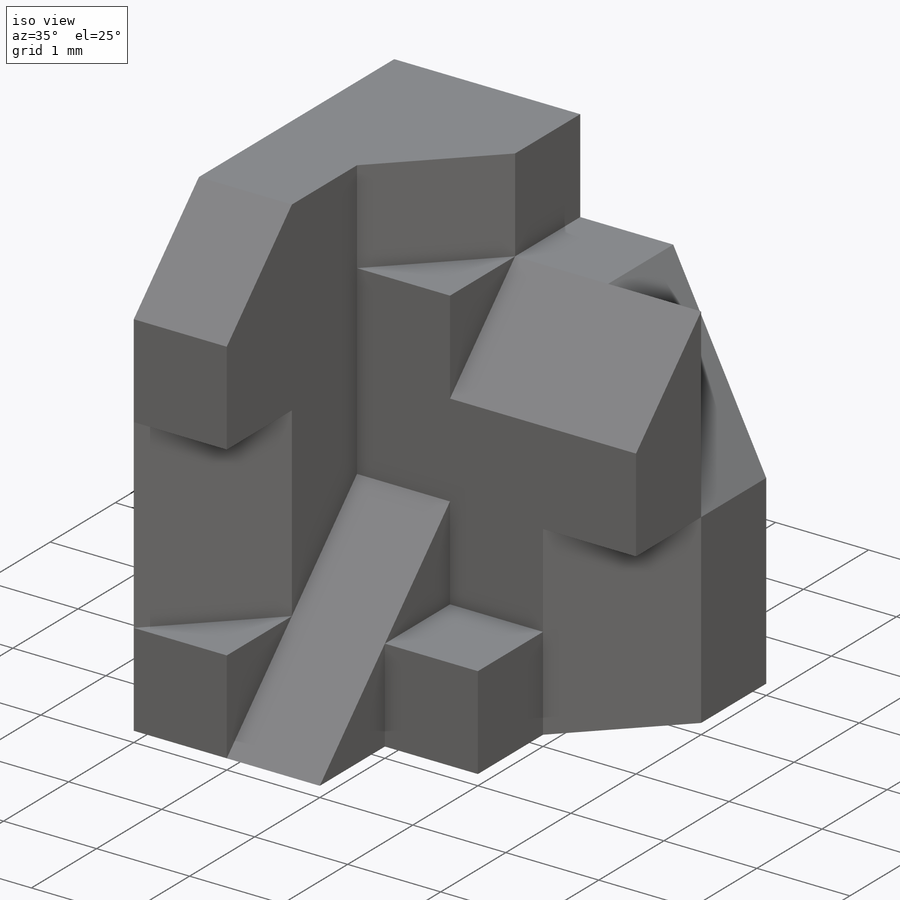
[diagram: iso view]
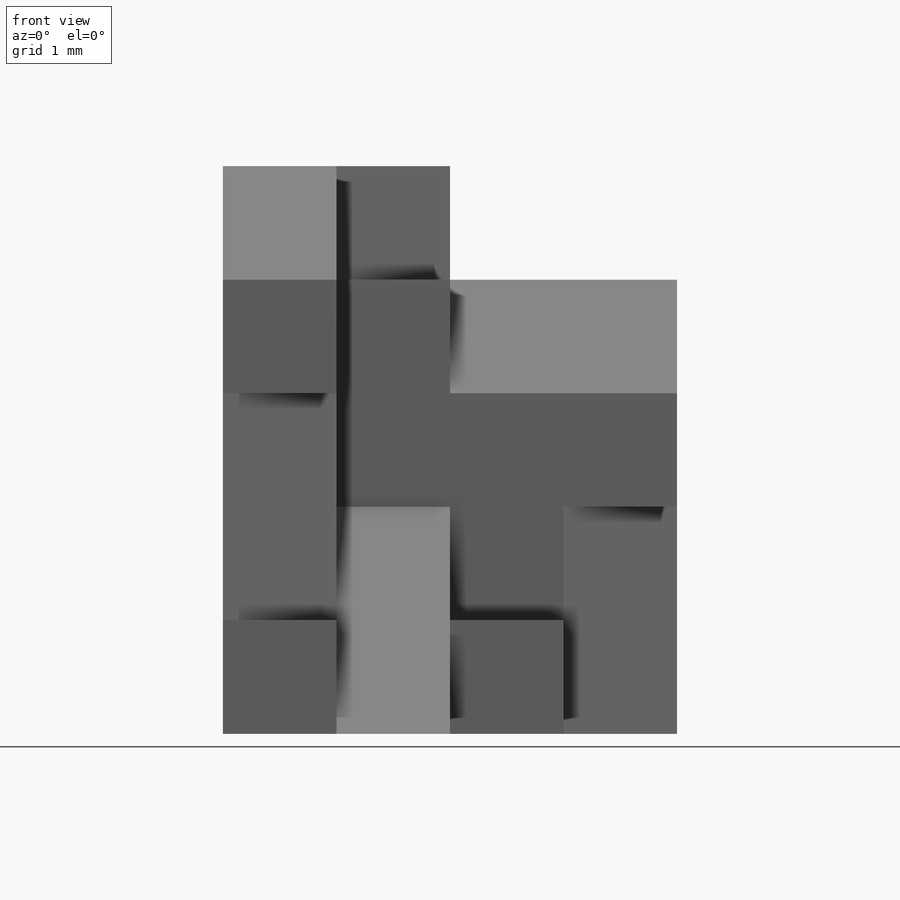
[diagram: front view]
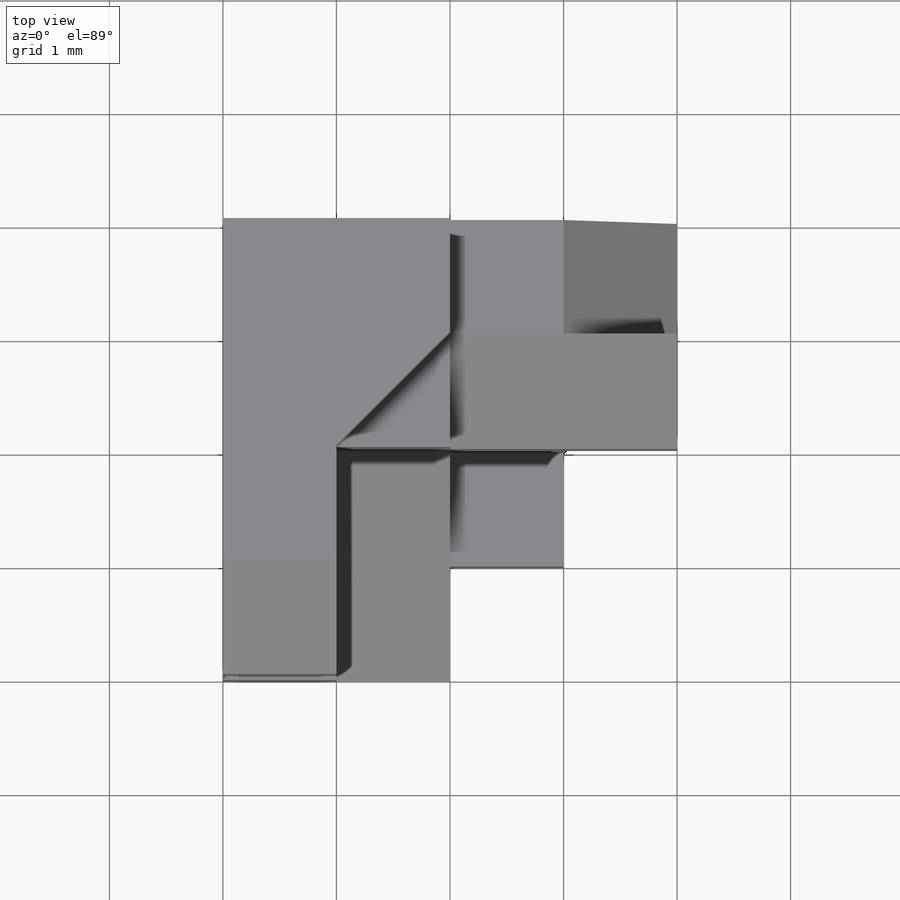
[diagram: top view]
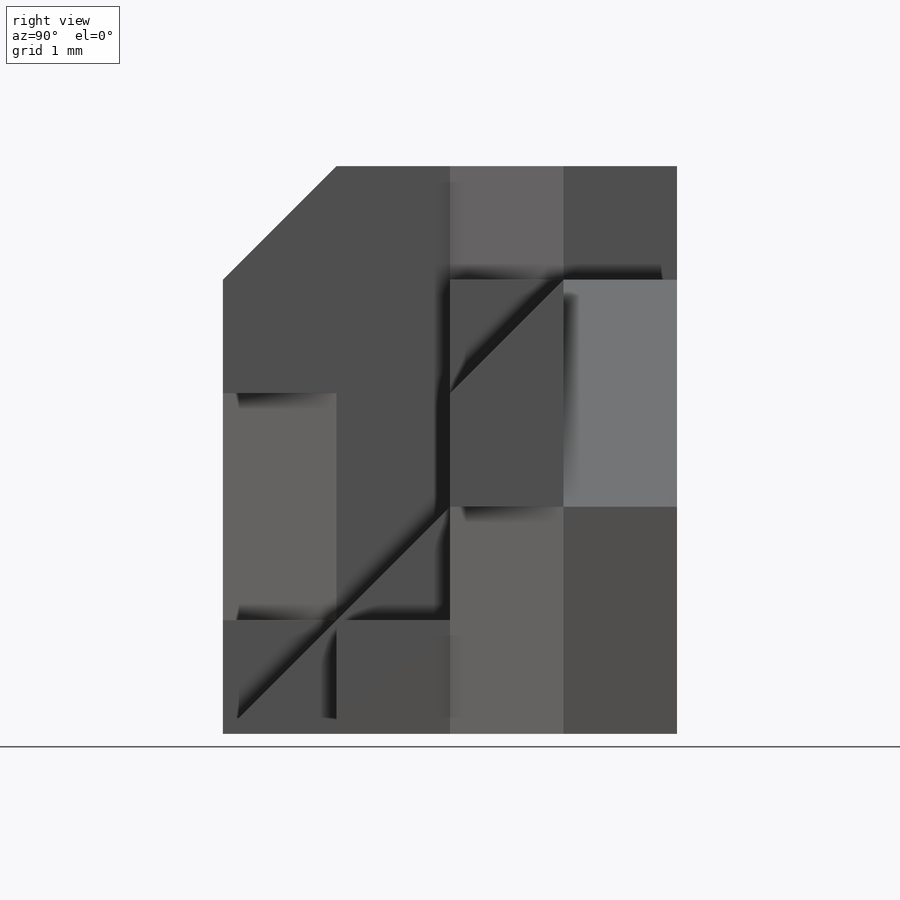
[diagram: right view]
SOLIDWORKS PART (.sldprt)
format: sldprt  version: not decoded by parser v0  size: 277,504 bytes
history: native  units: mm
features: sketch x12, cut_extrude x9, material x1, extrude x1, plane x1 (+13 scaffold rows collapsed)
feature tree (37):
  scaffold x13  (default folders/planes/origin — collapsed)
  material  "Material <not specified>"
  sketch  "Sketch1"  dims[D1=5.0mm D2=4.0mm]
  extrude  "Boss-Extrude1"  Depth=4mm
  sketch  "Sketch2"  dims[D1=1.0mm D2=1.0mm]
  cut_extrude  "Cut-Extrude1"  [1 undecoded]
  sketch  "Sketch3"  dims[D1=1.0mm D2=1.0mm D3=1.0mm D4=2.0mm]
  cut_extrude  "Cut-Extrude2"  Depth=1mm
  sketch  "Sketch4"  dims[D1=2.0mm]
  cut_extrude  "Cut-Extrude3"  Depth=1mm
  sketch  "Sketch5"  dims[D1=1.0mm]
  cut_extrude  "Cut-Extrude4"  Depth=2mm
  sketch  "Sketch6"  dims[D1=2.0mm]
  cut_extrude  "Cut-Extrude5"  Depth=4mm
  sketch  "Sketch7"  dims[D1=1.0mm]
  cut_extrude  "Cut-Extrude6"  [1 undecoded]
  sketch  "Sketch8"  dims[D1=5.0mm]
  cut_extrude  "Cut-Extrude7"  Depth=1mm
  sketch  "Sketch9"
  cut_extrude  "Cut-Extrude8"  Depth=2mm
  sketch  "Sketch10"
  sketch  "Sketch11"  dims[D1=1.0mm]
  plane  "Plane1"
  sketch  "Sketch12"  dims[D1=2.0mm]
  cut_extrude  "Cut-Extrude9"  [1 undecoded]
decode coverage: 17 of 22 modeling features carry decoded parameters
note: 3 parameter values undecoded
summary: no parameter record found for 3 features
note: suppression state not decoded; provenance and decode notes live in map.json
